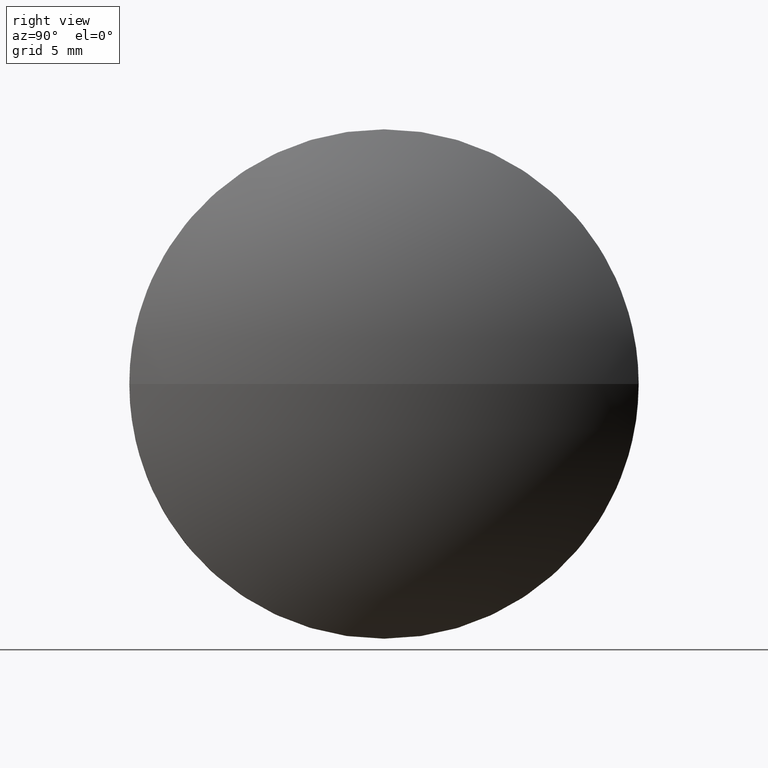
[diagram: clean part render]
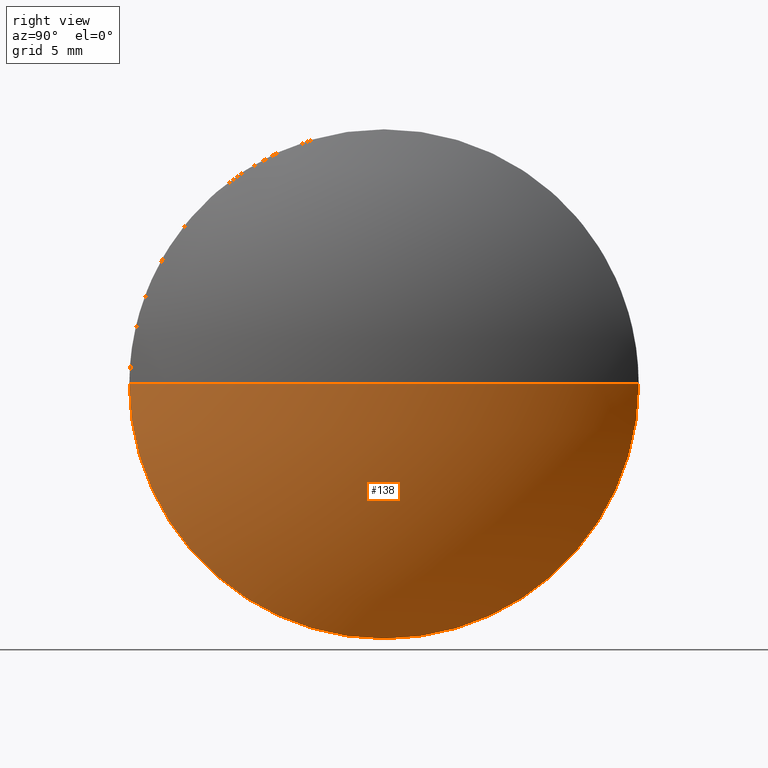
[diagram: same view with one face highlighted and labeled with its STEP entity id]
A machine part, right view. The second image highlights one B-rep face of the part: STEP entity #138.
In plain terms, the highlighted spherical surface has radius 20.662 mm.
Its self-contained STEP definition (entity closure, byte-faithful):
#10 = EDGE_CURVE ( 'NONE', #170, #79, #186, .T. ) ;
#11 = ORIENTED_EDGE ( 'NONE', *, *, #10, .F. ) ;
#12 = EDGE_LOOP ( 'NONE', ( #45, #93, #11, #21 ) ) ;
#13 = AXIS2_PLACEMENT_3D ( 'NONE', #153, #106, #120 ) ;
#21 = ORIENTED_EDGE ( 'NONE', *, *, #89, .F. ) ;
#28 = VERTEX_POINT ( 'NONE', #185 ) ;
#31 = CIRCLE ( 'NONE', #13, 20.66200712589070300 ) ;
#34 = SPHERICAL_SURFACE ( 'NONE', #161, 20.66200712589070300 ) ;
#45 = ORIENTED_EDGE ( 'NONE', *, *, #118, .F. ) ;
#48 = DIRECTION ( 'NONE',  ( 0.0000000000000000000, 0.0000000000000000000, -1.000000000000000000 ) ) ;
#49 = DIRECTION ( 'NONE',  ( 0.0000000000000000000, 0.0000000000000000000, 1.000000000000000000 ) ) ;
#65 = CIRCLE ( 'NONE', #128, 20.66200712589072500 ) ;
#72 = CIRCLE ( 'NONE', #132, 12.49999999999999600 ) ;
#73 = EDGE_CURVE ( 'NONE', #133, #79, #65, .T. ) ;
#75 = AXIS2_PLACEMENT_3D ( 'NONE', #141, #157, #77 ) ;
#76 = DIRECTION ( 'NONE',  ( -1.000000000000000000, 0.0000000000000000000, 0.0000000000000000000 ) ) ;
#77 = DIRECTION ( 'NONE',  ( 0.0000000000000000000, 0.0000000000000000000, 1.000000000000000000 ) ) ;
#79 = VERTEX_POINT ( 'NONE', #179 ) ;
#89 = EDGE_CURVE ( 'NONE', #28, #170, #72, .T. ) ;
#93 = ORIENTED_EDGE ( 'NONE', *, *, #73, .T. ) ;
#95 = CARTESIAN_POINT ( 'NONE',  ( 640.8965859254613000, 47.94655312557325300, 0.0000000000000000000 ) ) ;
#106 = DIRECTION ( 'NONE',  ( 0.0000000000000000000, -1.224646799147353200E-016, 1.000000000000000000 ) ) ;
#108 = CARTESIAN_POINT ( 'NONE',  ( 620.2345787995706100, 47.94655312557325300, 0.0000000000000000000 ) ) ;
#110 = CARTESIAN_POINT ( 'NONE',  ( 636.6865859254612600, 47.94655312557324600, 0.0000000000000000000 ) ) ;
#118 = EDGE_CURVE ( 'NONE', #133, #28, #31, .T. ) ;
#120 = DIRECTION ( 'NONE',  ( 0.0000000000000000000, -1.000000000000000000, -1.224646799147353200E-016 ) ) ;
#122 = DIRECTION ( 'NONE',  ( 0.0000000000000000000, 0.0000000000000000000, 1.000000000000000000 ) ) ;
#123 = CARTESIAN_POINT ( 'NONE',  ( 636.6865859254612600, 47.94655312557324600, -12.49999999999999600 ) ) ;
#128 = AXIS2_PLACEMENT_3D ( 'NONE', #182, #48, #76 ) ;
#132 = AXIS2_PLACEMENT_3D ( 'NONE', #110, #178, #49 ) ;
#133 = VERTEX_POINT ( 'NONE', #95 ) ;
#138 = ADVANCED_FACE ( 'NONE', ( #150 ), #34, .T. ) ;
#141 = CARTESIAN_POINT ( 'NONE',  ( 636.6865859254612600, 47.94655312557324600, 0.0000000000000000000 ) ) ;
#150 = FACE_OUTER_BOUND ( 'NONE', #12, .T. ) ;
#153 = CARTESIAN_POINT ( 'NONE',  ( 620.2345787995706100, 47.94655312557325300, 0.0000000000000000000 ) ) ;
#155 = DIRECTION ( 'NONE',  ( 0.0000000000000000000, -1.000000000000000000, 0.0000000000000000000 ) ) ;
#157 = DIRECTION ( 'NONE',  ( -1.000000000000000000, -0.0000000000000000000, -0.0000000000000000000 ) ) ;
#161 = AXIS2_PLACEMENT_3D ( 'NONE', #108, #122, #155 ) ;
#170 = VERTEX_POINT ( 'NONE', #123 ) ;
#178 = DIRECTION ( 'NONE',  ( -1.000000000000000000, -0.0000000000000000000, -0.0000000000000000000 ) ) ;
#179 = CARTESIAN_POINT ( 'NONE',  ( 636.6865859254612600, 35.44655312557323900, 0.0000000000000000000 ) ) ;
#182 = CARTESIAN_POINT ( 'NONE',  ( 620.2345787995706100, 47.94655312557325300, 0.0000000000000000000 ) ) ;
#185 = CARTESIAN_POINT ( 'NONE',  ( 636.6865859254612600, 60.44655312557326000, 1.530808498934192300E-015 ) ) ;
#186 = CIRCLE ( 'NONE', #75, 12.49999999999999600 ) ;